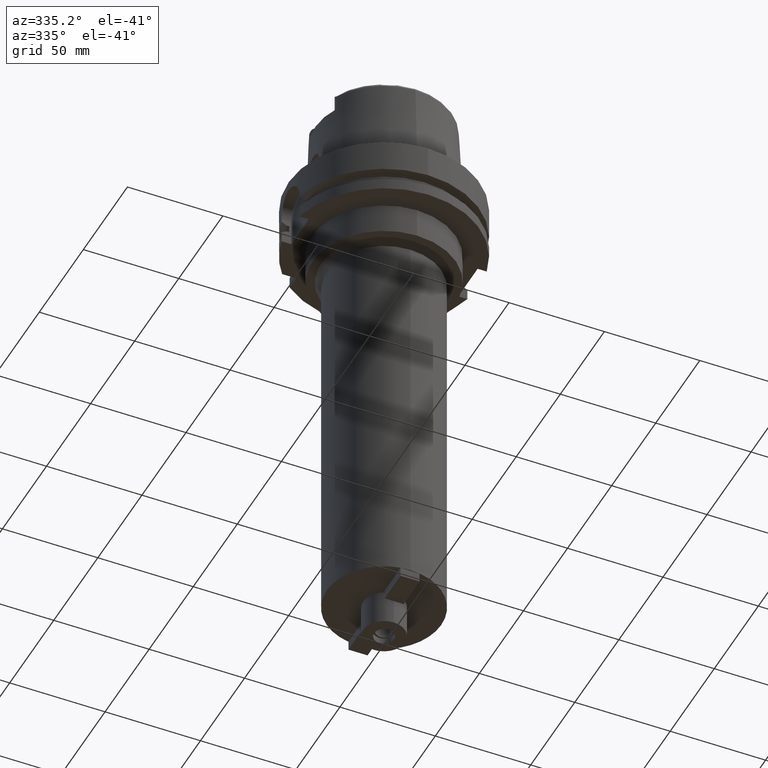
[diagram: clean part render]
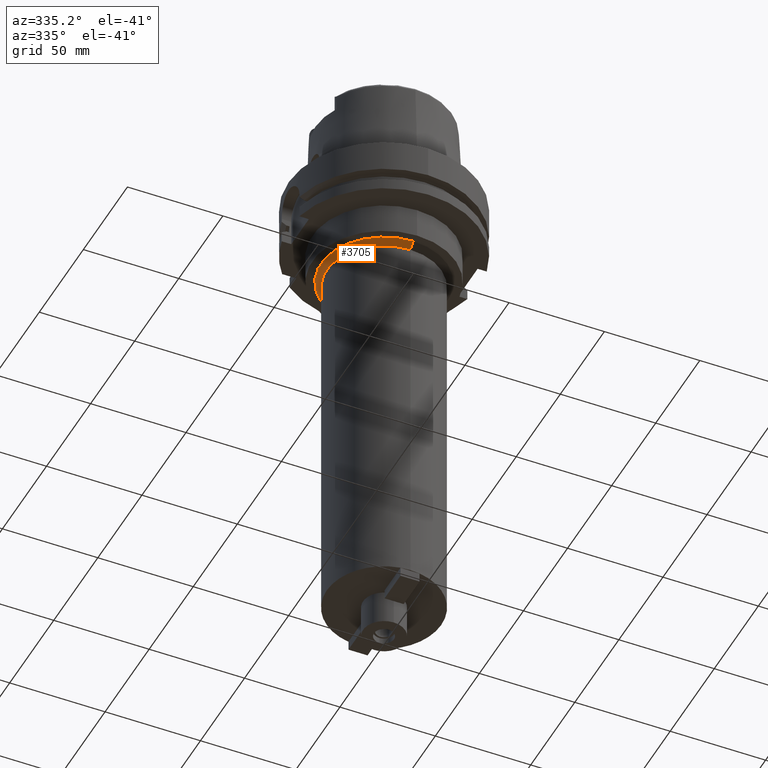
[diagram: same view with one face highlighted and labeled with its STEP entity id]
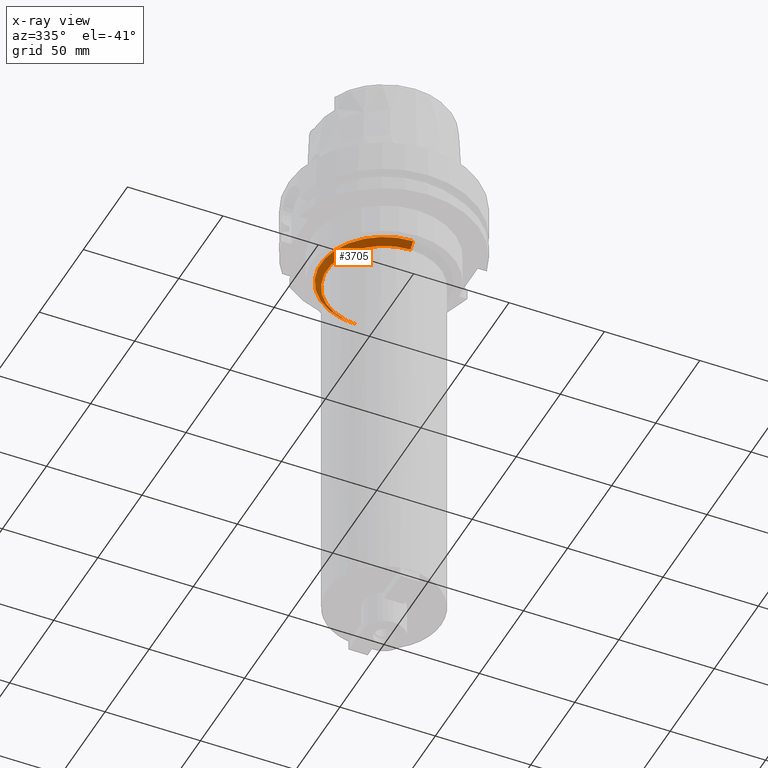
[diagram: x-ray of the same camera — body ghosted, the highlighted face saturated]
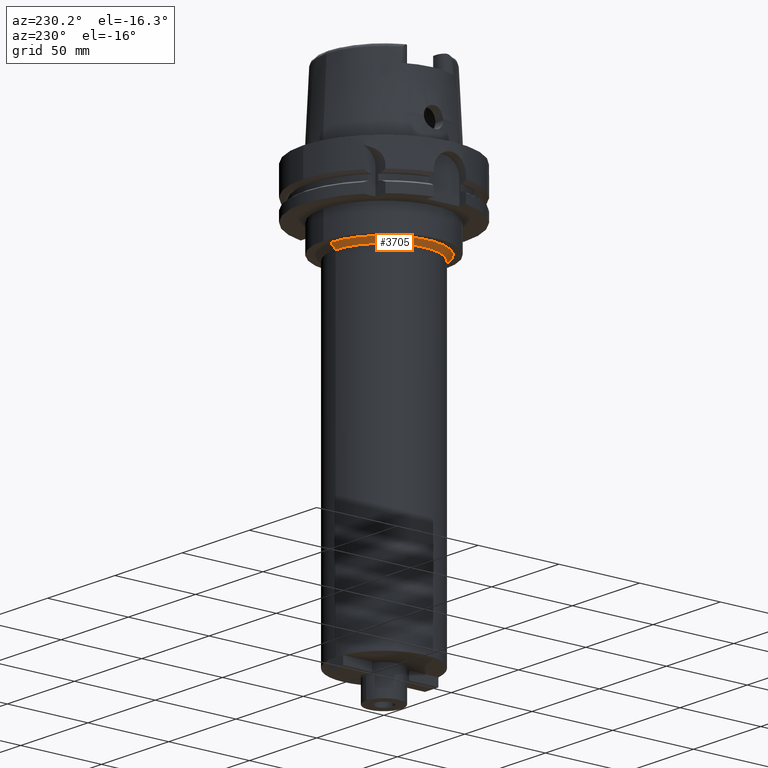
[diagram: same view with one face highlighted and labeled with its STEP entity id]
A machine part, auxiliary view. The second image highlights one B-rep face of the part: STEP entity #3705.
The next image is the same camera in x-ray: the body ghosted, the highlighted face saturated — about 3% of this face is hidden behind the body in this view.
A second angle (auxiliary view) of the same face is appended — the face is thin or edge-on in the first view.
In plain terms, the highlighted conical surface has half-angle 45 deg.
Its self-contained STEP definition (entity closure, byte-faithful):
#1199=DIRECTION('',(0.E0,7.071067811865E-1,-7.071067811866E-1));
#1200=VECTOR('',#1199,4.242640687119E0);
#1201=CARTESIAN_POINT('',(0.E0,-3.3E1,-4.5E1));
#1202=LINE('',#1201,#1200);
#1206=CARTESIAN_POINT('',(0.E0,0.E0,-4.8E1));
#1207=DIRECTION('',(0.E0,0.E0,-1.E0));
#1208=DIRECTION('',(0.E0,-1.E0,0.E0));
#1209=AXIS2_PLACEMENT_3D('',#1206,#1207,#1208);
#1214=DIRECTION('',(0.E0,-7.071067811865E-1,-7.071067811866E-1));
#1215=VECTOR('',#1214,4.242640687119E0);
#1216=CARTESIAN_POINT('',(0.E0,3.3E1,-4.5E1));
#1217=LINE('',#1216,#1215);
#1245=CARTESIAN_POINT('',(0.E0,0.E0,-4.5E1));
#1246=DIRECTION('',(0.E0,0.E0,-1.E0));
#1247=DIRECTION('',(0.E0,-1.E0,0.E0));
#1248=AXIS2_PLACEMENT_3D('',#1245,#1246,#1247);
#2624=CARTESIAN_POINT('',(0.E0,3.E1,-4.8E1));
#2625=VERTEX_POINT('',#2624);
#2626=CARTESIAN_POINT('',(0.E0,-3.E1,-4.8E1));
#2627=VERTEX_POINT('',#2626);
#2628=CARTESIAN_POINT('',(0.E0,3.3E1,-4.5E1));
#2629=VERTEX_POINT('',#2628);
#2630=CARTESIAN_POINT('',(0.E0,-3.3E1,-4.5E1));
#2631=VERTEX_POINT('',#2630);
#3691=CARTESIAN_POINT('',(0.E0,0.E0,-4.65E1));
#3692=DIRECTION('',(0.E0,0.E0,1.E0));
#3693=DIRECTION('',(0.E0,1.E0,0.E0));
#3694=AXIS2_PLACEMENT_3D('',#3691,#3692,#3693);
#3695=CONICAL_SURFACE('',#3694,3.15E1,4.5E1);
#3697=ORIENTED_EDGE('',*,*,#3696,.F.);
#3699=ORIENTED_EDGE('',*,*,#3698,.F.);
#3701=ORIENTED_EDGE('',*,*,#3700,.T.);
#3702=ORIENTED_EDGE('',*,*,#3684,.T.);
#3703=EDGE_LOOP('',(#3697,#3699,#3701,#3702));
#3704=FACE_OUTER_BOUND('',#3703,.F.);
#1210=CIRCLE('',#1209,3.E1);
#1249=CIRCLE('',#1248,3.3E1);
#3684=EDGE_CURVE('',#2627,#2625,#1210,.T.);
#3696=EDGE_CURVE('',#2629,#2625,#1217,.T.);
#3698=EDGE_CURVE('',#2631,#2629,#1249,.T.);
#3700=EDGE_CURVE('',#2631,#2627,#1202,.T.);
#3705=ADVANCED_FACE('',(#3704),#3695,.T.);